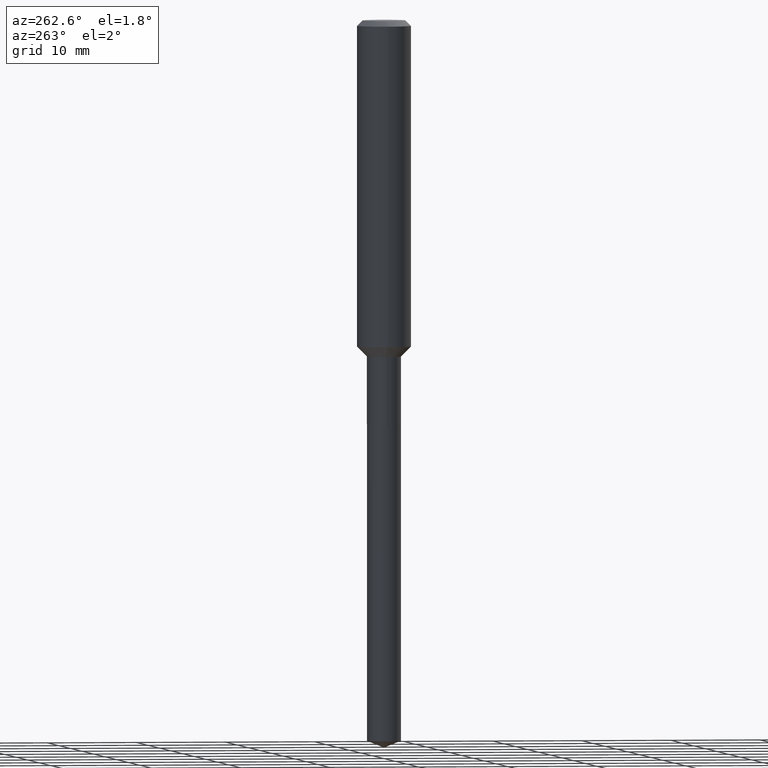
[diagram: clean part render]
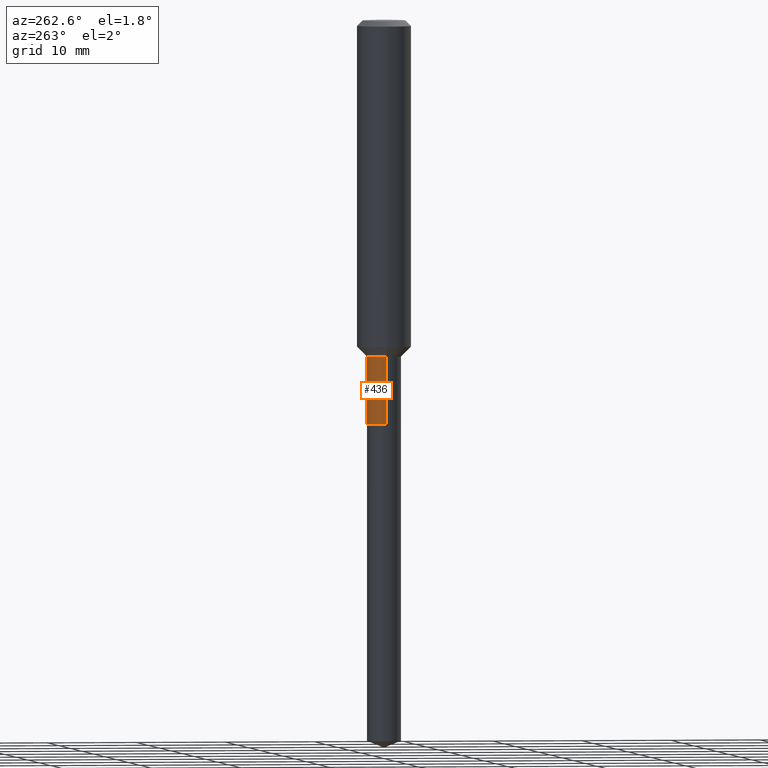
[diagram: same view with one face highlighted and labeled with its STEP entity id]
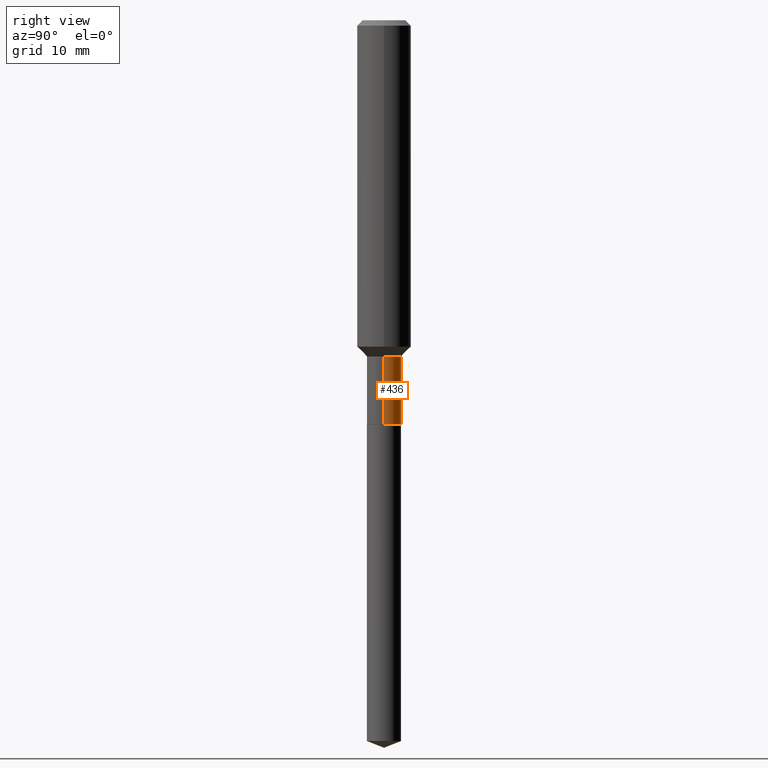
[diagram: same view with one face highlighted and labeled with its STEP entity id]
A machine part, auxiliary view. The second image highlights one B-rep face of the part: STEP entity #436.
A second angle (right view) of the same face is appended — the face is thin or edge-on in the first view.
In plain terms, the highlighted cylindrical surface (edge-blend (fillet) strip) has radius 1.8999 mm, axis along (-0, 0, 1).
Its self-contained STEP definition (entity closure, byte-faithful):
#2 = AXIS2_PLACEMENT_3D ( 'NONE', #414, #298, #69 ) ;
#29 = DIRECTION ( 'NONE',  ( 1.000000000000000000, -6.982962677686261977E-15, 0.000000000000000000 ) ) ;
#30 = AXIS2_PLACEMENT_3D ( 'NONE', #377, #33, #29 ) ;
#33 = DIRECTION ( 'NONE',  ( -2.445468806185136597E-29, 3.491481338843145583E-15, 1.000000000000000000 ) ) ;
#34 = CARTESIAN_POINT ( 'NONE',  ( -0.07479999999999997762, -5.133267931857507370E-15, -1.473700000000000232 ) ) ;
#35 = LINE ( 'NONE', #348, #199 ) ;
#39 = VERTEX_POINT ( 'NONE', #411 ) ;
#53 = EDGE_CURVE ( 'NONE', #228, #183, #35, .T. ) ;
#55 = DIRECTION ( 'NONE',  ( -2.445468806185136877E-29, 3.491481338843145188E-15, 1.000000000000000000 ) ) ;
#62 = DIRECTION ( 'NONE',  ( -2.445468806185136877E-29, 3.491481338843145188E-15, 1.000000000000000000 ) ) ;
#69 = DIRECTION ( 'NONE',  ( 1.000000000000000000, -6.982962677686264344E-15, 0.000000000000000000 ) ) ;
#89 = ORIENTED_EDGE ( 'NONE', *, *, #253, .F. ) ;
#183 = VERTEX_POINT ( 'NONE', #486 ) ;
#199 = VECTOR ( 'NONE', #62, 39.37007874015748143 ) ;
#205 = ORIENTED_EDGE ( 'NONE', *, *, #53, .F. ) ;
#220 = ORIENTED_EDGE ( 'NONE', *, *, #362, .T. ) ;
#228 = VERTEX_POINT ( 'NONE', #372 ) ;
#231 = CYLINDRICAL_SURFACE ( 'NONE', #366, 0.07479999999999999150 ) ;
#253 = EDGE_CURVE ( 'NONE', #183, #417, #277, .T. ) ;
#257 = CARTESIAN_POINT ( 'NONE',  ( -0.07479999999999999150, 5.314859663485548786E-16, -3.679363447510669380E-30 ) ) ;
#264 = DIRECTION ( 'NONE',  ( -2.445468806185136597E-29, 3.491481338843145583E-15, 1.000000000000000000 ) ) ;
#271 = CARTESIAN_POINT ( 'NONE',  ( 0.000000000000000000, 0.000000000000000000, 0.000000000000000000 ) ) ;
#277 = CIRCLE ( 'NONE', #2, 0.07479999999999997762 ) ;
#294 = EDGE_CURVE ( 'NONE', #228, #39, #410, .T. ) ;
#298 = DIRECTION ( 'NONE',  ( -2.445468806185136597E-29, 3.491481338843145583E-15, 1.000000000000000000 ) ) ;
#300 = FACE_OUTER_BOUND ( 'NONE', #458, .T. ) ;
#342 = VECTOR ( 'NONE', #55, 39.37007874015748143 ) ;
#348 = CARTESIAN_POINT ( 'NONE',  ( 0.07479999999999999150, -5.223256082909327018E-16, 3.647380228295360164E-30 ) ) ;
#362 = EDGE_CURVE ( 'NONE', #39, #417, #403, .T. ) ;
#366 = AXIS2_PLACEMENT_3D ( 'NONE', #271, #264, #375 ) ;
#372 = CARTESIAN_POINT ( 'NONE',  ( 0.07480000000000000537, -6.706437355649913956E-15, -1.771200000000000552 ) ) ;
#375 = DIRECTION ( 'NONE',  ( 1.000000000000000000, -6.982962677686266711E-15, 4.876176775795936353E-29 ) ) ;
#377 = CARTESIAN_POINT ( 'NONE',  ( 4.331414349515115307E-29, -6.184111747358981944E-15, -1.771200000000000552 ) ) ;
#403 = LINE ( 'NONE', #257, #342 ) ;
#410 = CIRCLE ( 'NONE', #30, 0.07480000000000000537 ) ;
#411 = CARTESIAN_POINT ( 'NONE',  ( -0.07480000000000000537, -5.133267931857507370E-15, -1.771200000000000552 ) ) ;
#414 = CARTESIAN_POINT ( 'NONE',  ( 3.603887379675036317E-29, -5.145396049053143934E-15, -1.473700000000000232 ) ) ;
#417 = VERTEX_POINT ( 'NONE', #34 ) ;
#430 = ORIENTED_EDGE ( 'NONE', *, *, #294, .T. ) ;
#436 = ADVANCED_FACE ( 'NONE', ( #300 ), #231, .T. ) ;
#458 = EDGE_LOOP ( 'NONE', ( #430, #220, #89, #205 ) ) ;
#486 = CARTESIAN_POINT ( 'NONE',  ( 0.07479999999999997762, -5.667721657344076734E-15, -1.473700000000000232 ) ) ;